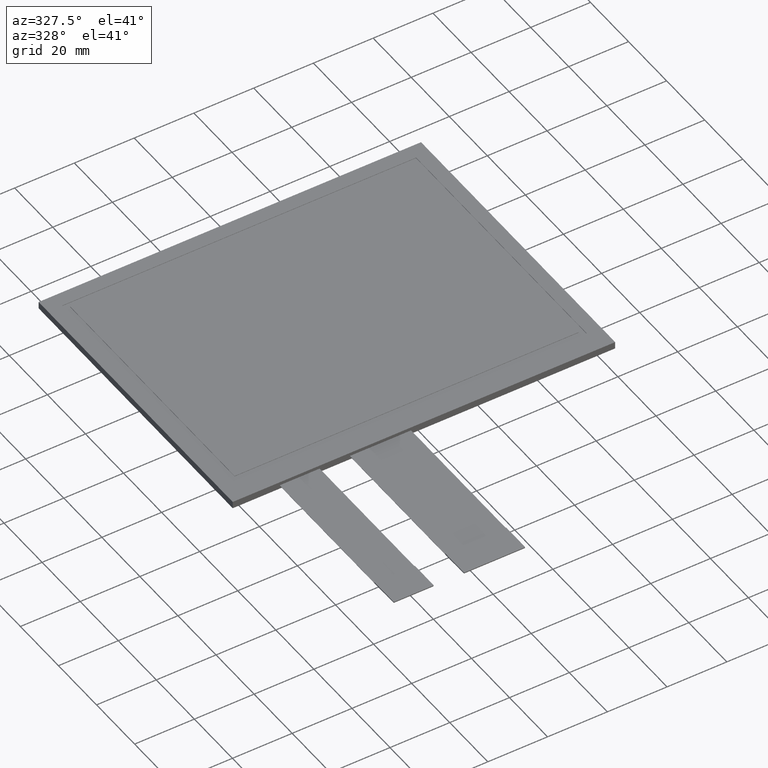
[diagram: clean part render]
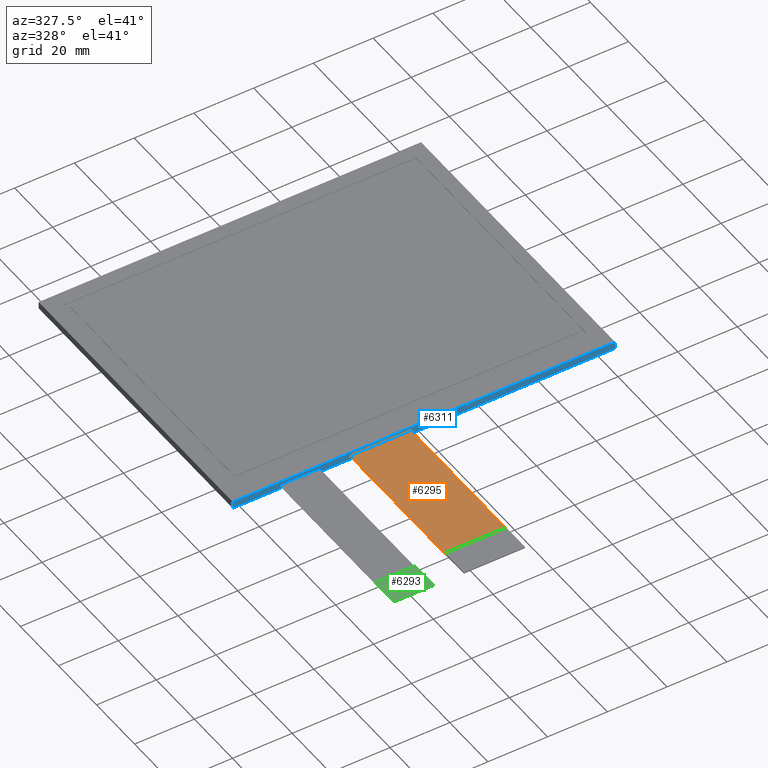
[diagram: same view with three faces highlighted in distinct colors, each labeled with its STEP entity id]
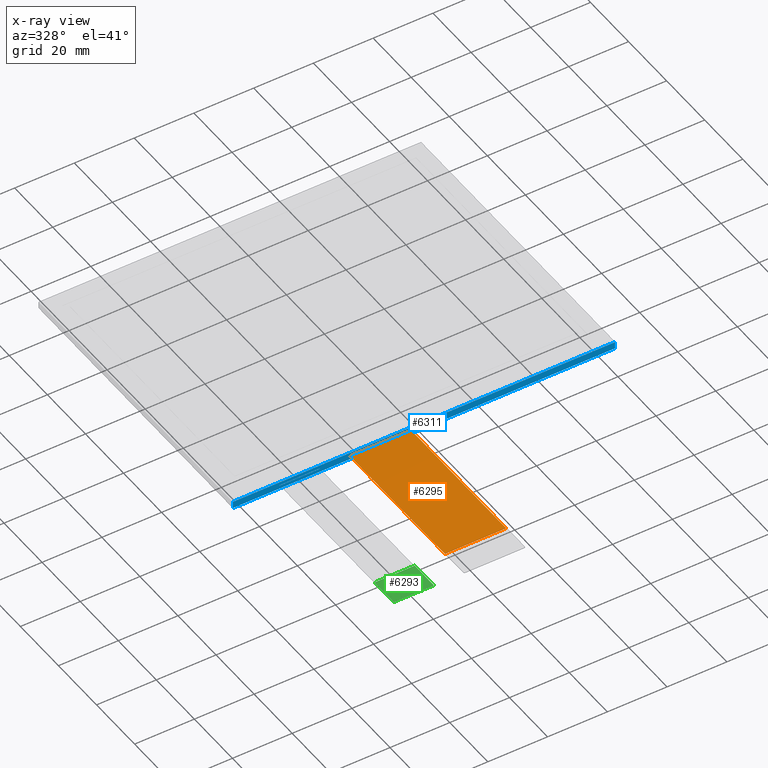
[diagram: x-ray of the same camera — body ghosted, the three highlighted faces saturated]
A machine part, auxiliary view with three faces highlighted in distinct colors.
The next image is the same camera in x-ray (body ghosted, the three faces saturated) — at least one of them is partly hidden behind the body in this view.
Their STEP definitions:

[orange] entity #6295 — the highlighted planar face has unit normal (0, 0, 1).
#357=PLANE('',#6625);
#659=FACE_OUTER_BOUND('',#961,.T.);
#961=EDGE_LOOP('',(#5909,#5910,#5911,#5912));
#1810=LINE('',#9818,#2690);
#1813=LINE('',#9824,#2693);
#1823=LINE('',#9843,#2703);
#1824=LINE('',#9845,#2704);
#2690=VECTOR('',#8042,10.);
#2693=VECTOR('',#8047,10.);
#2703=VECTOR('',#8065,10.);
#2704=VECTOR('',#8068,10.);
#3311=VERTEX_POINT('',#9815);
#3312=VERTEX_POINT('',#9817);
#3314=VERTEX_POINT('',#9823);
#3319=VERTEX_POINT('',#9841);
#4178=EDGE_CURVE('',#3312,#3311,#1810,.T.);
#4181=EDGE_CURVE('',#3311,#3314,#1813,.T.);
#4191=EDGE_CURVE('',#3314,#3319,#1823,.T.);
#4192=EDGE_CURVE('',#3312,#3319,#1824,.T.);
#5909=ORIENTED_EDGE('',*,*,#4181,.T.);
#5910=ORIENTED_EDGE('',*,*,#4191,.T.);
#5911=ORIENTED_EDGE('',*,*,#4192,.F.);
#5912=ORIENTED_EDGE('',*,*,#4178,.T.);
#6295=ADVANCED_FACE('',(#659),#357,.T.);
#6625=AXIS2_PLACEMENT_3D('',#9844,#8066,#8067);
#8042=DIRECTION('',(-4.44089209850063E-16,-1.,0.));
#8047=DIRECTION('',(1.,0.,0.));
#8065=DIRECTION('',(4.62592926927148E-16,1.,0.));
#8066=DIRECTION('center_axis',(0.,0.,1.));
#8067=DIRECTION('ref_axis',(1.,0.,0.));
#8068=DIRECTION('',(1.,6.93889390390723E-17,0.));
#9815=CARTESIAN_POINT('',(-24.85,-102.31,-1.1));
#9817=CARTESIAN_POINT('',(-24.85,-52.31,-1.1));
#9818=CARTESIAN_POINT('',(-24.85,-52.31,-1.1));
#9823=CARTESIAN_POINT('',(-4.35000000000003,-102.31,-1.1));
#9824=CARTESIAN_POINT('',(-9.47500000000002,-102.31,-1.1));
#9841=CARTESIAN_POINT('',(-4.35,-52.31,-1.1));
#9843=CARTESIAN_POINT('',(-4.35000000000002,-112.31,-1.1));
#9844=CARTESIAN_POINT('Origin',(-14.6,-82.31,-1.1));
#9845=CARTESIAN_POINT('',(24.685,-52.31,-1.1));

[blue] entity #6311 — the highlighted planar face has unit normal (0, -1, 0).
#77=FACE_BOUND('',#980,.T.);
#78=FACE_BOUND('',#981,.T.);
#373=PLANE('',#6641);
#675=FACE_OUTER_BOUND('',#979,.T.);
#979=EDGE_LOOP('',(#5985,#5986,#5987,#5988));
#980=EDGE_LOOP('',(#5989,#5990,#5991,#5992));
#981=EDGE_LOOP('',(#5993,#5994,#5995,#5996));
#1799=LINE('',#9796,#2679);
#1804=LINE('',#9805,#2684);
#1811=LINE('',#9820,#2691);
#1822=LINE('',#9842,#2702);
#1824=LINE('',#9845,#2704);
#1825=LINE('',#9847,#2705);
#1826=LINE('',#9850,#2706);
#1828=LINE('',#9853,#2708);
#1856=LINE('',#9911,#2736);
#1861=LINE('',#9921,#2741);
#1862=LINE('',#9924,#2742);
#1863=LINE('',#9925,#2743);
#2679=VECTOR('',#8025,10.);
#2684=VECTOR('',#8032,10.);
#2691=VECTOR('',#8043,10.);
#2702=VECTOR('',#8064,10.);
#2704=VECTOR('',#8068,10.);
#2705=VECTOR('',#8071,10.);
#2706=VECTOR('',#8074,10.);
#2708=VECTOR('',#8078,10.);
#2736=VECTOR('',#8126,10.);
#2741=VECTOR('',#8135,10.);
#2742=VECTOR('',#8138,10.);
#2743=VECTOR('',#8139,10.);
#3303=VERTEX_POINT('',#9793);
#3304=VERTEX_POINT('',#9795);
#3307=VERTEX_POINT('',#9803);
#3312=VERTEX_POINT('',#9817);
#3313=VERTEX_POINT('',#9819);
#3318=VERTEX_POINT('',#9839);
#3319=VERTEX_POINT('',#9841);
#3320=VERTEX_POINT('',#9849);
#3337=VERTEX_POINT('',#9904);
#3340=VERTEX_POINT('',#9909);
#3343=VERTEX_POINT('',#9919);
#3344=VERTEX_POINT('',#9923);
#4167=EDGE_CURVE('',#3304,#3303,#1799,.T.);
#4172=EDGE_CURVE('',#3303,#3307,#1804,.T.);
#4179=EDGE_CURVE('',#3313,#3312,#1811,.T.);
#4190=EDGE_CURVE('',#3319,#3318,#1822,.T.);
#4192=EDGE_CURVE('',#3312,#3319,#1824,.T.);
#4193=EDGE_CURVE('',#3318,#3313,#1825,.T.);
#4194=EDGE_CURVE('',#3320,#3304,#1826,.T.);
#4196=EDGE_CURVE('',#3307,#3320,#1828,.T.);
#4224=EDGE_CURVE('',#3340,#3337,#1856,.T.);
#4229=EDGE_CURVE('',#3340,#3343,#1861,.T.);
#4230=EDGE_CURVE('',#3344,#3343,#1862,.T.);
#4231=EDGE_CURVE('',#3337,#3344,#1863,.T.);
#5985=ORIENTED_EDGE('',*,*,#4224,.F.);
#5986=ORIENTED_EDGE('',*,*,#4229,.T.);
#5987=ORIENTED_EDGE('',*,*,#4230,.F.);
#5988=ORIENTED_EDGE('',*,*,#4231,.F.);
#5989=ORIENTED_EDGE('',*,*,#4179,.T.);
#5990=ORIENTED_EDGE('',*,*,#4192,.T.);
#5991=ORIENTED_EDGE('',*,*,#4190,.T.);
#5992=ORIENTED_EDGE('',*,*,#4193,.T.);
#5993=ORIENTED_EDGE('',*,*,#4194,.T.);
#5994=ORIENTED_EDGE('',*,*,#4167,.T.);
#5995=ORIENTED_EDGE('',*,*,#4172,.T.);
#5996=ORIENTED_EDGE('',*,*,#4196,.T.);
#6311=ADVANCED_FACE('',(#675,#77,#78),#373,.T.);
#6641=AXIS2_PLACEMENT_3D('',#9922,#8136,#8137);
#8025=DIRECTION('',(-1.,-6.93889390390723E-17,0.));
#8032=DIRECTION('',(0.,0.,1.));
#8043=DIRECTION('',(0.,0.,1.));
#8064=DIRECTION('',(0.,0.,-1.));
#8068=DIRECTION('',(1.,6.93889390390723E-17,0.));
#8071=DIRECTION('',(-1.,-6.93889390390723E-17,0.));
#8074=DIRECTION('',(0.,0.,-1.));
#8078=DIRECTION('',(1.,6.93889390390723E-17,0.));
#8126=DIRECTION('',(1.,6.93889390390723E-17,0.));
#8135=DIRECTION('',(0.,0.,-1.));
#8136=DIRECTION('center_axis',(6.93889390390723E-17,-1.,0.));
#8137=DIRECTION('ref_axis',(-1.,-6.93889390390723E-17,0.));
#8138=DIRECTION('',(-1.,-6.93889390390723E-17,0.));
#8139=DIRECTION('',(0.,0.,-1.));
#9793=CARTESIAN_POINT('',(-48.35,-52.31,-1.2));
#9795=CARTESIAN_POINT('',(-34.95,-52.31,-1.2));
#9796=CARTESIAN_POINT('',(11.16,-52.31,-1.2));
#9803=CARTESIAN_POINT('',(-48.35,-52.31,-1.1));
#9805=CARTESIAN_POINT('',(-48.35,-52.31,-0.55));
#9817=CARTESIAN_POINT('',(-24.85,-52.31,-1.1));
#9819=CARTESIAN_POINT('',(-24.85,-52.31,-1.2));
#9820=CARTESIAN_POINT('',(-24.85,-52.31,-0.55));
#9839=CARTESIAN_POINT('',(-4.35,-52.31,-1.2));
#9841=CARTESIAN_POINT('',(-4.35,-52.31,-1.1));
#9842=CARTESIAN_POINT('',(-4.35,-52.31,-0.55));
#9845=CARTESIAN_POINT('',(24.685,-52.31,-1.1));
#9847=CARTESIAN_POINT('',(24.685,-52.31,-1.2));
#9849=CARTESIAN_POINT('',(-34.95,-52.31,-1.1));
#9850=CARTESIAN_POINT('',(-34.95,-52.31,-0.55));
#9853=CARTESIAN_POINT('',(11.16,-52.31,-1.1));
#9904=CARTESIAN_POINT('',(63.97,-52.31,0.));
#9909=CARTESIAN_POINT('',(-64.03,-52.31,0.));
#9911=CARTESIAN_POINT('',(-64.03,-52.31,0.));
#9919=CARTESIAN_POINT('',(-64.03,-52.31,-2.35));
#9921=CARTESIAN_POINT('',(-64.03,-52.31,0.));
#9922=CARTESIAN_POINT('Origin',(63.97,-52.31,0.));
#9923=CARTESIAN_POINT('',(63.97,-52.31,-2.35));
#9924=CARTESIAN_POINT('',(-64.03,-52.31,-2.35));
#9925=CARTESIAN_POINT('',(63.97,-52.31,0.));

[green] entity #6293 — the highlighted planar face has unit normal (0, 0, 1).
#355=PLANE('',#6623);
#657=FACE_OUTER_BOUND('',#959,.T.);
#959=EDGE_LOOP('',(#5895,#5896,#5897,#5898,#5899,#5900));
#1163=LINE('',#8520,#2043);
#1801=LINE('',#9800,#2681);
#1818=LINE('',#9834,#2698);
#1820=LINE('',#9837,#2700);
#2043=VECTOR('',#6853,10.);
#2681=VECTOR('',#8029,10.);
#2698=VECTOR('',#8056,10.);
#2700=VECTOR('',#8060,10.);
#2749=CIRCLE('',#6345,0.2);
#2751=CIRCLE('',#6350,0.2);
#2925=VERTEX_POINT('',#8502);
#2926=VERTEX_POINT('',#8503);
#2932=VERTEX_POINT('',#8519);
#3037=VERTEX_POINT('',#8731);
#3305=VERTEX_POINT('',#9799);
#3317=VERTEX_POINT('',#9833);
#3521=EDGE_CURVE('',#2925,#2926,#2749,.T.);
#3529=EDGE_CURVE('',#2932,#2926,#1163,.T.);
#3635=EDGE_CURVE('',#2932,#3037,#2751,.T.);
#4169=EDGE_CURVE('',#3305,#3037,#1801,.T.);
#4186=EDGE_CURVE('',#3317,#3305,#1818,.T.);
#4188=EDGE_CURVE('',#2925,#3317,#1820,.T.);
#5895=ORIENTED_EDGE('',*,*,#3521,.F.);
#5896=ORIENTED_EDGE('',*,*,#4188,.T.);
#5897=ORIENTED_EDGE('',*,*,#4186,.T.);
#5898=ORIENTED_EDGE('',*,*,#4169,.T.);
#5899=ORIENTED_EDGE('',*,*,#3635,.F.);
#5900=ORIENTED_EDGE('',*,*,#3529,.T.);
#6293=ADVANCED_FACE('',(#657),#355,.T.);
#6345=AXIS2_PLACEMENT_3D('',#8504,#6839,#6840);
#6350=AXIS2_PLACEMENT_3D('',#8732,#6961,#6962);
#6623=AXIS2_PLACEMENT_3D('',#9836,#8058,#8059);
#6839=DIRECTION('center_axis',(0.,0.,-1.));
#6840=DIRECTION('ref_axis',(0.707106781186548,-0.707106781186548,0.));
#6853=DIRECTION('',(1.,0.,0.));
#6961=DIRECTION('center_axis',(0.,0.,-1.));
#6962=DIRECTION('ref_axis',(-0.707106781186548,-0.707106781186548,0.));
#8029=DIRECTION('',(0.,-1.,0.));
#8056=DIRECTION('',(-1.,0.,0.));
#8058=DIRECTION('center_axis',(0.,0.,1.));
#8059=DIRECTION('ref_axis',(1.,0.,0.));
#8060=DIRECTION('',(0.,1.,0.));
#8502=CARTESIAN_POINT('',(-34.95,-112.11,-0.8));
#8503=CARTESIAN_POINT('',(-35.15,-112.31,-0.8));
#8504=CARTESIAN_POINT('Origin',(-35.15,-112.11,-0.8));
#8519=CARTESIAN_POINT('',(-48.15,-112.31,-0.8));
#8520=CARTESIAN_POINT('',(-48.35,-112.31,-0.8));
#8731=CARTESIAN_POINT('',(-48.35,-112.11,-0.8));
#8732=CARTESIAN_POINT('Origin',(-48.15,-112.11,-0.8));
#9799=CARTESIAN_POINT('',(-48.35,-102.31,-0.8));
#9800=CARTESIAN_POINT('',(-48.35,-102.31,-0.8));
#9833=CARTESIAN_POINT('',(-34.95,-102.31,-0.8));
#9834=CARTESIAN_POINT('',(-34.95,-102.31,-0.8));
#9836=CARTESIAN_POINT('Origin',(-41.65,-107.31,-0.8));
#9837=CARTESIAN_POINT('',(-34.95,-112.31,-0.8));